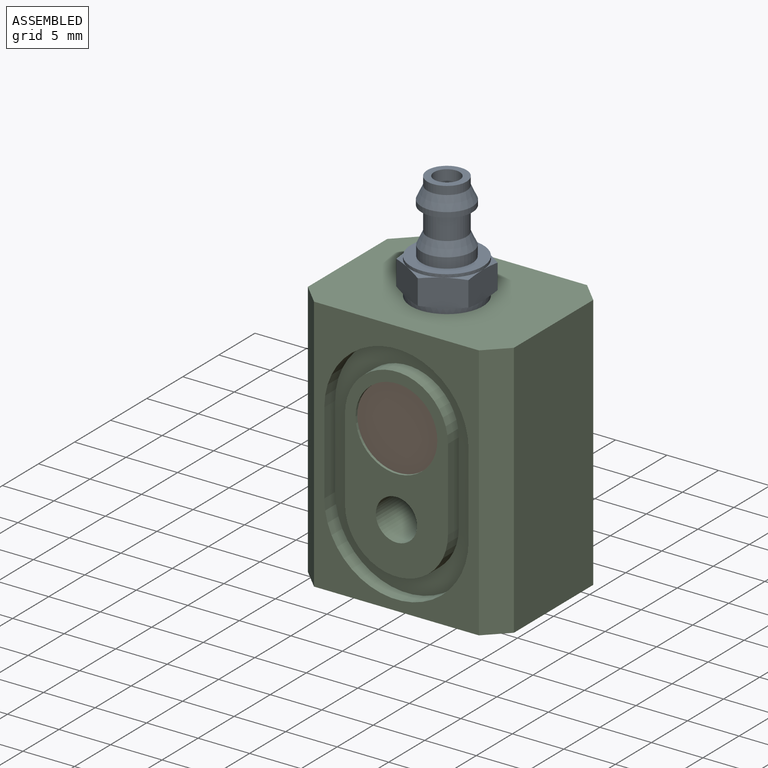
[diagram: assembled view]
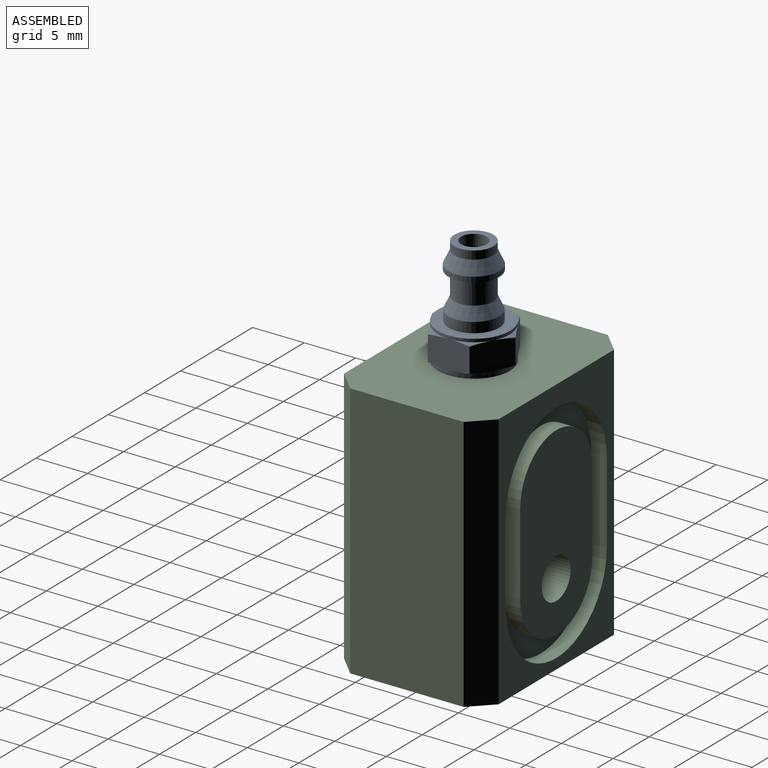
[diagram: assembled view, second angle]
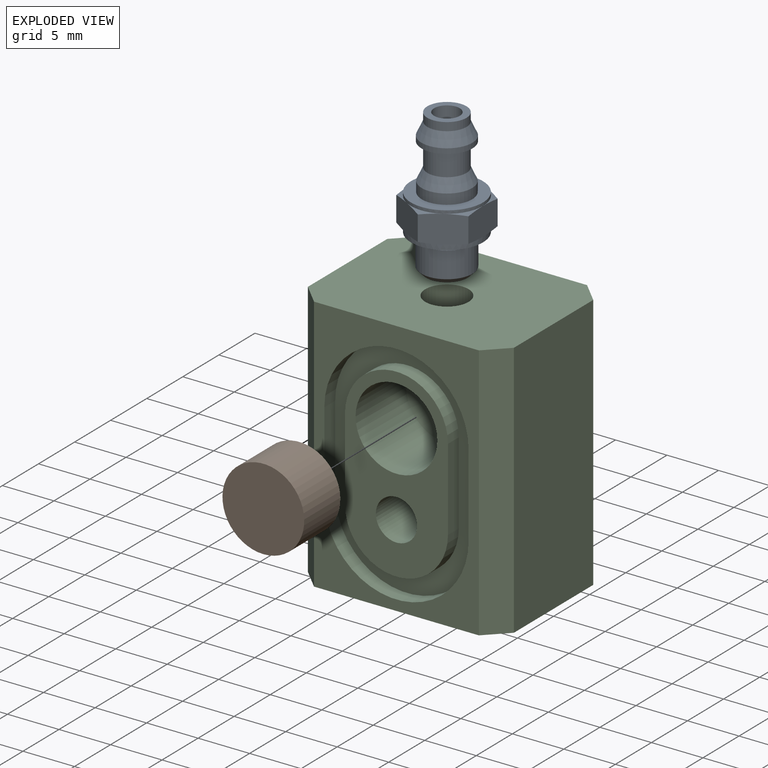
[diagram: exploded view]
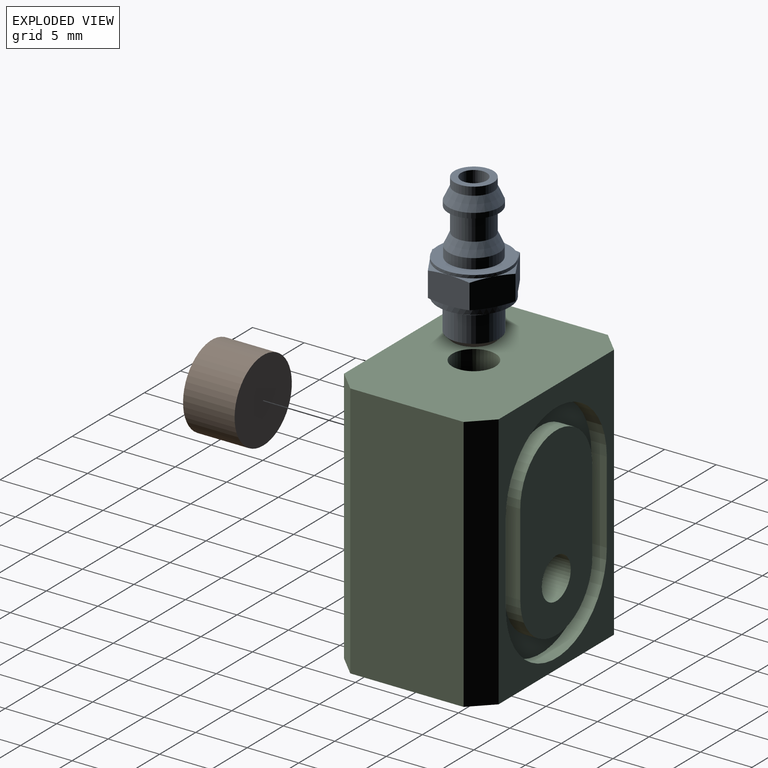
[diagram: exploded view, second angle]
ASSEMBLY  parts=3 mates=2
PART A: 35 faces, bbox 8.4x14.3x8.4 mm
  f0: cone r=3.5mm half-angle=75deg, axis (0,1,0), area 1.1mm2, adj f11,f18,f22
  f1: plane 3.8x3.8mm, normal (0,1,0), area 6.4mm2, adj f15,f23
  f2: plane 3.79x2.99mm, normal (-0.5,0,-0.87), area 10.5mm2, adj f3,f5,f6,f10,f17,f19
  f3: cone r=7mm half-angle=75deg, axis (0,-1,0), area 1.1mm2, adj f2,f4,f10
  f4: cylinder r=3.5mm len=7mm, axis (0,1,0), area 6.6mm2, adj f3,f5,f7,f9,f12,f13,f30
  f5: cone r=7mm half-angle=75deg, axis (0,-1,0), area 1.1mm2, adj f2,f4,f6
  f6: plane 4.34x2.99mm, normal (-1,0,0), area 10.5mm2, adj f2,f5,f7,f8,f14,f19
  f7: cone r=7mm half-angle=75deg, axis (0,-1,0), area 1.1mm2, adj f4,f6,f14
  f8: cone r=3.5mm half-angle=75deg, axis (0,1,0), area 1.1mm2, adj f6,f14,f18
  f9: cone r=7mm half-angle=75deg, axis (0,-1,0), area 1.1mm2, adj f4,f14,f22
  f10: plane 3.79x2.99mm, normal (0.5,0,-0.87), area 10.5mm2, adj f2,f3,f11,f12,f16,f17
  f11: plane 4.34x2.99mm, normal (1,0,0), area 10.5mm2, adj f0,f10,f12,f13,f16,f22
  f12: cone r=7mm half-angle=75deg, axis (0,-1,0), area 1.1mm2, adj f4,f10,f11
  f13: cone r=7mm half-angle=75deg, axis (0,-1,0), area 1.1mm2, adj f4,f11,f22
  f14: plane 3.79x2.99mm, normal (-0.5,0,0.87), area 10.5mm2, adj f6,f7,f8,f9,f21,f22
  f15: cylinder r=1.25mm len=14mm, axis (0,1,0), area 110mm2, adj f1,f34
  f16: cone r=3.5mm half-angle=75deg, axis (0,1,0), area 1.1mm2, adj f10,f11,f18
  f17: cone r=3.5mm half-angle=75deg, axis (0,1,0), area 1.1mm2, adj f2,f10,f18
  f18: cylinder r=3.5mm len=7mm, axis (0,1,0), area 11mm2, adj f0,f8,f16,f17,f19,f20,f21
  f19: cone r=3.5mm half-angle=75deg, axis (0,1,0), area 1.1mm2, adj f2,f6,f18
  f20: plane 7x7mm, normal (0,-1,0), area 25.8mm2, adj f18,f31
  f21: cone r=3.5mm half-angle=75deg, axis (0,1,0), area 1.1mm2, adj f14,f18,f22
  f22: plane 3.79x2.99mm, normal (0.5,0,0.87), area 10.5mm2, adj f0,f9,f11,f13,f14,f21
  f23: cylinder r=1.9mm len=3.8mm, axis (0,1,0), area 9.6mm2, adj f1,f24
  f24: cone r=2.48mm half-angle=25deg, axis (0,-1,0), area 18.7mm2, adj f23,f25
  f25: cylinder r=2.48mm len=4.95mm, axis (0,1,0), area 7.8mm2, adj f24,f26
  f26: plane 4.95x4.95mm, normal (0,-1,0), area 7.9mm2, adj f25,f27
  f27: cylinder r=1.9mm len=3.8mm, axis (0,1,0), area 27.5mm2, adj f26,f28
  f28: cone r=2.45mm half-angle=25deg, axis (0,-1,0), area 17.8mm2, adj f27,f29
  f29: cylinder r=2.45mm len=4.9mm, axis (0,1,0), area 15.2mm2, adj f28,f30
  f30: plane 7x7mm, normal (0,1,0), area 19.6mm2, adj f4,f29
  f31: cone r=2.5mm half-angle=45deg, axis (0,-1,0), area 9.8mm2, adj f20,f32
  f32: cylinder r=2.5mm len=5mm, axis (0,1,0), area 39.6mm2, adj f31,f33
  f33: cone r=2.01mm half-angle=45deg, axis (0,1,0), area 9.8mm2, adj f32,f34
  f34: plane 4.02x4.02mm, normal (0,-1,0), area 7.8mm2, adj f15,f33
PART B: 3 faces, bbox 7.9x5x7.9 mm
  f0: cylinder r=3.97mm len=7.94mm, axis (0,1,0), area 124.7mm2, adj f1,f2
  f1: plane 7.94x7.94mm, normal (0,-1,0), area 49.5mm2, adj f0
  f2: plane 7.94x7.94mm, normal (0,1,0), area 49.5mm2, adj f0
PART C: 38 faces, bbox 20x25x15 mm
  f0: plane 25x16mm, normal (0,0,-1), area 134.1mm2, adj f9,f10,f16,f18,f29,f30,f31,f36
  f1: plane 18x10mm, normal (0,0,1), area 96.5mm2, adj f3,f13,f23,f24,f25,f26
  f2: cone r=0mm half-angle=59deg, axis (0,0,1), area 41.9mm2, adj f3,f4,f11,f12,f14,f15
  f3: cylinder r=3.97mm len=7.94mm, axis (0,0,1), area 167.4mm2, adj f1,f2,f15
  f4: cylinder r=2mm len=3.99mm, axis (0,1,0), area 11.8mm2, adj f2,f14
  f5: plane 25x11mm, normal (-1,0,0), area 275mm2, adj f9,f10,f16,f17
  f6: plane 18x10mm, normal (0,0,-1), area 146mm2, adj f13,f32,f33,f34,f35
  f7: plane 25x11mm, normal (1,0,0), area 275mm2, adj f9,f10,f18,f19
  f8: plane 25x16mm, normal (0,0,1), area 134.1mm2, adj f9,f10,f17,f19,f20,f21,f22,f27
  f9: plane 20x15mm, normal (0,-1,0), area 292mm2, adj f0,f5,f7,f8,f16,f17,f18,f19
  f10: plane 20x15mm, normal (0,1,0), area 278.1mm2, adj f0,f5,f7,f8,f15,f16,f17,f18
  f11: cylinder r=2mm len=3.07mm, axis (0,1,0), area 1.5mm2, adj f2,f12
  f12: cone r=0mm half-angle=59deg, axis (0,1,0), area 0.9mm2, adj f2,f11
  f13: cylinder r=2mm len=15mm, axis (0,0,1), area 188.5mm2, adj f1,f6
  f14: cone r=0mm half-angle=59deg, axis (0,1,0), area 0.7mm2, adj f2,f4,f15
  f15: cylinder r=2.1mm len=5.8mm, axis (0,1,0), area 73.4mm2, adj f2,f3,f10,f14
  f16: plane 25x2mm, normal (-0.71,0,-0.71), area 70.7mm2, adj f0,f5,f9,f10
  f17: plane 25x2mm, normal (-0.71,0,0.71), area 70.7mm2, adj f5,f8,f9,f10
  f18: plane 25x2mm, normal (0.71,0,-0.71), area 70.7mm2, adj f0,f7,f9,f10
  f19: plane 25x2mm, normal (0.71,0,0.71), area 70.7mm2, adj f7,f8,f9,f10
  f20: cylinder r=7mm len=14mm, axis (0,0,1), area 33mm2, adj f8,f21,f27,f28
  f21: plane 8x1.5mm, normal (1,0,0), area 12mm2, adj f8,f20,f22,f28
  f22: cylinder r=7mm len=14mm, axis (0,0,1), area 33mm2, adj f8,f21,f27,f28
  f23: plane 8x1.5mm, normal (-1,0,0), area 12mm2, adj f1,f24,f26,f28
  f24: cylinder r=5mm len=10mm, axis (0,0,1), area 23.6mm2, adj f1,f23,f25,f28
  f25: plane 8x1.5mm, normal (1,0,0), area 12mm2, adj f1,f24,f26,f28
  f26: cylinder r=5mm len=10mm, axis (0,0,1), area 23.6mm2, adj f1,f23,f25,f28
  f27: plane 8x1.5mm, normal (-1,0,0), area 12mm2, adj f8,f20,f22,f28
  f28: plane 22x14mm, normal (0,0,1), area 107.4mm2, adj f20,f21,f22,f23,f24,f25,f26,f27
  f29: cylinder r=7mm len=14mm, axis (0,0,-1), area 33mm2, adj f0,f30,f36,f37
  f30: plane 8x1.5mm, normal (-1,0,0), area 12mm2, adj f0,f29,f31,f37
  f31: cylinder r=7mm len=14mm, axis (0,0,-1), area 33mm2, adj f0,f30,f36,f37
  f32: plane 8x1.5mm, normal (-1,0,0), area 12mm2, adj f6,f33,f35,f37
  f33: cylinder r=5mm len=10mm, axis (0,0,-1), area 23.6mm2, adj f6,f32,f34,f37
  f34: plane 8x1.5mm, normal (1,0,0), area 12mm2, adj f6,f33,f35,f37
  f35: cylinder r=5mm len=10mm, axis (0,0,-1), area 23.6mm2, adj f6,f32,f34,f37
  f36: plane 8x1.5mm, normal (1,0,0), area 12mm2, adj f0,f29,f31,f37
  f37: plane 22x14mm, normal (0,0,-1), area 107.4mm2, adj f29,f30,f31,f32,f33,f34,f35,f36
PLACE A rot(axis=(1,0,0),90deg) t=(0,-0.5,25)mm
PLACE B t=(0,-2.25,16)mm
PLACE C rot(axis=(1,0,0),90deg) t=(-10,7.5,25)mm
MATE revolute A.f0 <-> C.f4  axis (0,0,-1) through (0,-0.5,25)mm
MATE revolute B.f0 <-> C.f2  axis (0,-1,0) through (0,-7.25,16)mm
